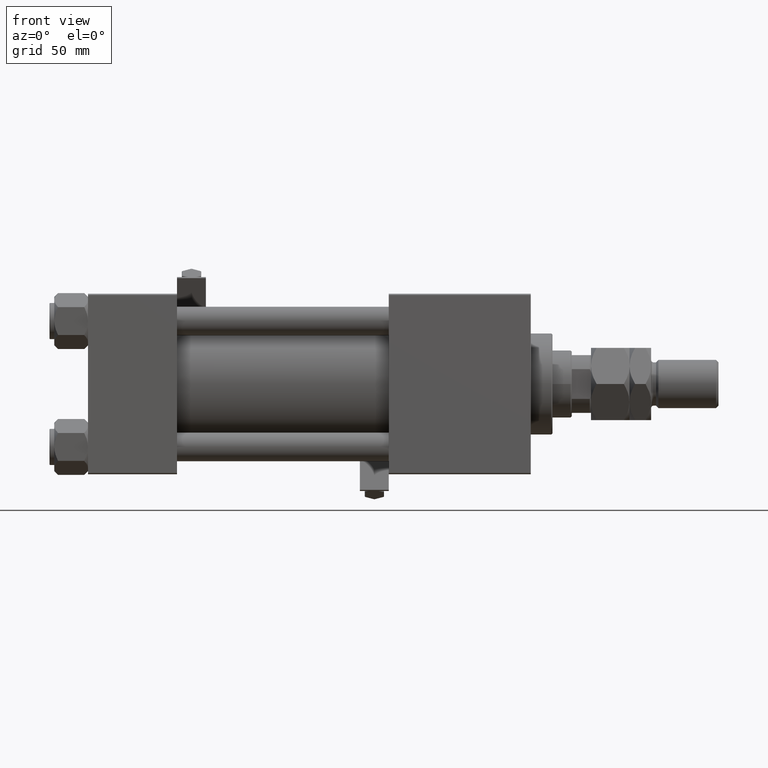
[diagram: clean part render]
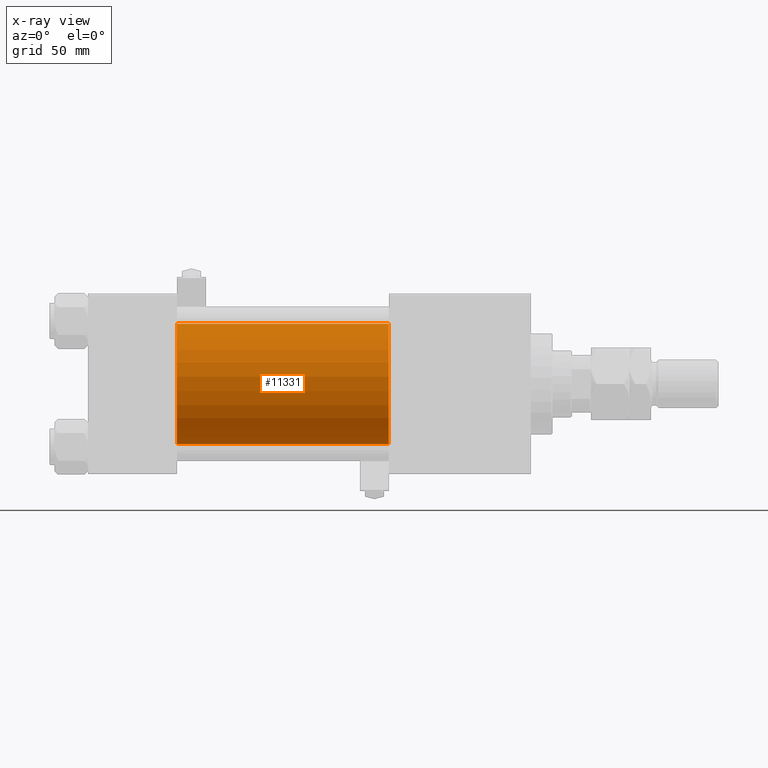
[diagram: x-ray — body ghosted, one internal face saturated and labeled with its STEP entity id]
A machine part, front view, then the same camera in x-ray: the body is ghosted and one INTERNAL B-rep face — a face not visible from any outside direction — is saturated and labeled: STEP entity #11331.
In plain terms, the highlighted cylindrical surface (partial cylindrical patch) has radius 25 mm, axis along (-1, -0, -0).
Its self-contained STEP definition (entity closure, byte-faithful):
#1595 = VERTEX_POINT ( 'NONE', #26080 ) ;
#2611 = CIRCLE ( 'NONE', #17106, 25.00000000000000000 ) ;
#4932 = VERTEX_POINT ( 'NONE', #42951 ) ;
#5716 = CARTESIAN_POINT ( 'NONE',  ( 37.00000000000000000, -2.602085213965210642E-15, 0.000000000000000000 ) ) ;
#7430 = FACE_OUTER_BOUND ( 'NONE', #44485, .T. ) ;
#11091 = DIRECTION ( 'NONE',  ( -1.000000000000000000, -0.000000000000000000, -0.000000000000000000 ) ) ;
#11331 = ADVANCED_FACE ( 'NONE', ( #7430 ), #39498, .F. ) ;
#11449 = CARTESIAN_POINT ( 'NONE',  ( 125.0000000000000000, -2.602085213965210642E-15, 0.000000000000000000 ) ) ;
#13278 = ORIENTED_EDGE ( 'NONE', *, *, #27221, .F. ) ;
#14228 = CARTESIAN_POINT ( 'NONE',  ( 125.0000000000000000, 4.595317839031724996E-16, -25.00000000000000000 ) ) ;
#14731 = ORIENTED_EDGE ( 'NONE', *, *, #28187, .T. ) ;
#14732 = DIRECTION ( 'NONE',  ( 0.000000000000000000, 0.000000000000000000, -1.000000000000000000 ) ) ;
#15399 = CIRCLE ( 'NONE', #28205, 25.00000000000000000 ) ;
#15835 = EDGE_CURVE ( 'NONE', #30829, #4932, #23895, .T. ) ;
#17106 = AXIS2_PLACEMENT_3D ( 'NONE', #5716, #26038, #30032 ) ;
#19620 = CARTESIAN_POINT ( 'NONE',  ( 125.0000000000000000, -2.602085213965210642E-15, 25.00000000000000000 ) ) ;
#22233 = DIRECTION ( 'NONE',  ( -1.000000000000000000, -0.000000000000000000, -0.000000000000000000 ) ) ;
#23202 = DIRECTION ( 'NONE',  ( 0.000000000000000000, 0.000000000000000000, 1.000000000000000000 ) ) ;
#23895 = LINE ( 'NONE', #19620, #52640 ) ;
#24899 = VERTEX_POINT ( 'NONE', #36492 ) ;
#25461 = LINE ( 'NONE', #14228, #48092 ) ;
#26038 = DIRECTION ( 'NONE',  ( 1.000000000000000000, 0.000000000000000000, 0.000000000000000000 ) ) ;
#26080 = CARTESIAN_POINT ( 'NONE',  ( 37.00000000000000000, 4.595317839031724996E-16, -25.00000000000000000 ) ) ;
#27221 = EDGE_CURVE ( 'NONE', #4932, #1595, #2611, .T. ) ;
#28187 = EDGE_CURVE ( 'NONE', #30829, #24899, #15399, .T. ) ;
#28205 = AXIS2_PLACEMENT_3D ( 'NONE', #46552, #30495, #14732 ) ;
#30032 = DIRECTION ( 'NONE',  ( 0.000000000000000000, 0.000000000000000000, -1.000000000000000000 ) ) ;
#30495 = DIRECTION ( 'NONE',  ( 1.000000000000000000, 0.000000000000000000, 0.000000000000000000 ) ) ;
#30829 = VERTEX_POINT ( 'NONE', #42396 ) ;
#32978 = ORIENTED_EDGE ( 'NONE', *, *, #34086, .T. ) ;
#34086 = EDGE_CURVE ( 'NONE', #24899, #1595, #25461, .T. ) ;
#34368 = ORIENTED_EDGE ( 'NONE', *, *, #15835, .F. ) ;
#36492 = CARTESIAN_POINT ( 'NONE',  ( 125.0000000000000000, 4.595317839031724996E-16, -25.00000000000000000 ) ) ;
#39498 = CYLINDRICAL_SURFACE ( 'NONE', #43095, 25.00000000000000000 ) ;
#42396 = CARTESIAN_POINT ( 'NONE',  ( 125.0000000000000000, -2.602085213965210642E-15, 25.00000000000000000 ) ) ;
#42951 = CARTESIAN_POINT ( 'NONE',  ( 37.00000000000000000, -2.602085213965210642E-15, 25.00000000000000000 ) ) ;
#43095 = AXIS2_PLACEMENT_3D ( 'NONE', #11449, #48323, #23202 ) ;
#44485 = EDGE_LOOP ( 'NONE', ( #14731, #32978, #13278, #34368 ) ) ;
#46552 = CARTESIAN_POINT ( 'NONE',  ( 125.0000000000000000, -2.602085213965210642E-15, 0.000000000000000000 ) ) ;
#48092 = VECTOR ( 'NONE', #22233, 1000.000000000000000 ) ;
#48323 = DIRECTION ( 'NONE',  ( -1.000000000000000000, -0.000000000000000000, -0.000000000000000000 ) ) ;
#52640 = VECTOR ( 'NONE', #11091, 1000.000000000000000 ) ;